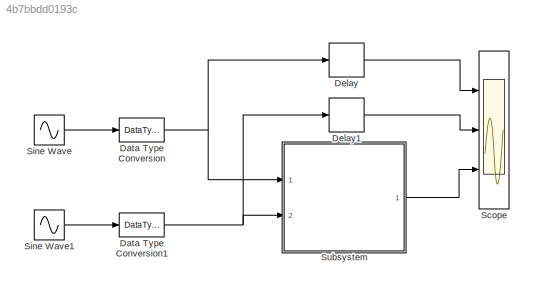
MODEL slx_4b7bbdd0193c
KIND model
CONFIG AbsTol = auto
CONFIG FixedStep = auto
CONFIG MaxStep = auto
CONFIG MinStep = auto
CONFIG RelTol = 1e-3
CONFIG SampleTimeConstraint = Unconstrained
CONFIG Solver = ode45
CONFIG SolverMode = Auto
CONFIG SolverName = ode45
CONFIG StartTime = 0.0
CONFIG StopTime = 1
BLOCK [DataTypeConversion] Data Type Conversion
  OutDataTypeStr = int8
  RndMeth = Floor
  SaturateOnIntegerOverflow = off
BLOCK [DataTypeConversion] Data Type Conversion1
  OutDataTypeStr = int8
  RndMeth = Floor
  SaturateOnIntegerOverflow = off
BLOCK [Delay] Delay
  InputPortMap = u0
  Ports = [1, 1]
BLOCK [Delay] Delay1
  InputPortMap = u0
  Ports = [1, 1]
BLOCK [Scope] Scope
  NumInputPorts = 3
  Ports = [3]
  ScopeSpecificationString = Simulink.scopes.TimeScopeBlockCfg('CurrentConfiguration', extmgr.ConfigurationSet(extmgr.Configuration('Core','General UI',true),extmgr.Configuration('Core','Source UI',true),extmgr.Configuration('Sources','WiredSimulink',true,'DataLoggingSaveFormat','StructureWithTime','DataLoggingLimitDataPoints',true,'DataLoggingDecimation','1','DataLoggingDecimateData',true),extmgr.Configuration('Visuals','Tim...<+3095ch>
BLOCK [Sin] Sine Wave
  Amplitude = 127
  Frequency = 2*pi*5
  Ports = [0, 1]
  SampleTime = 1/100
BLOCK [Sin] Sine Wave1
  Amplitude = 127
  Frequency = 2*pi*8
  Ports = [0, 1]
  SampleTime = 1/100
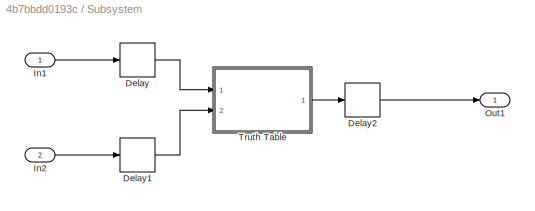
BLOCK [SubSystem] Subsystem
  Ports = [2, 1]
  RequestExecContextInheritance = off
  Variant = off
BLOCK [Delay] Subsystem/Delay
  DelayLength = 1
  InputPortMap = u0
  Ports = [1, 1]
BLOCK [Delay] Subsystem/Delay1
  DelayLength = 1
  InputPortMap = u0
  Ports = [1, 1]
BLOCK [Delay] Subsystem/Delay2
  DelayLength = 1
  InputPortMap = u0
  Ports = [1, 1]
BLOCK [Inport] Subsystem/In1
  IconDisplay = Port number
BLOCK [Inport] Subsystem/In2
  IconDisplay = Port number
  Port = 2
BLOCK [Outport] Subsystem/Out1
  IconDisplay = Port number
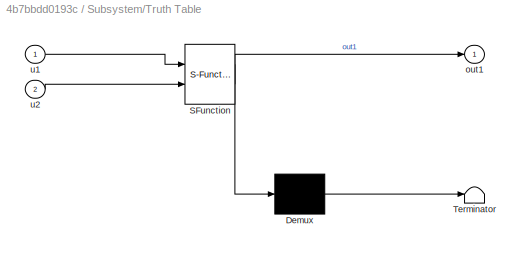
BLOCK [SubSystem] Subsystem/Truth Table
  ErrorFcn = Stateflow.Translate.translate
  PermitHierarchicalResolution = ExplicitOnly
  Ports = [2, 1]
  RequestExecContextInheritance = off
  SFBlockType = Truth Table
  TreatAsAtomicUnit = on
  Variant = off
BLOCK [Demux] Subsystem/Truth Table/ Demux 
  Outputs = 1
  Ports = [1, 1]
BLOCK [S-Function] Subsystem/Truth Table/ SFunction 
  EnableBusSupport = on
  FunctionName = sf_sfun
  PortCounts = [2 2]
  Ports = [2, 2]
  SFunctionDeploymentMode = off
  Tag = Stateflow S-Function sf_truthtable 2
BLOCK [Terminator] Subsystem/Truth Table/ Terminator 
BLOCK [Outport] Subsystem/Truth Table/out1
  IconDisplay = Port number
BLOCK [Inport] Subsystem/Truth Table/u1
  IconDisplay = Port number
BLOCK [Inport] Subsystem/Truth Table/u2
  IconDisplay = Port number
  Port = 2
NET Data Type Conversion1:1 -> Delay1:1, Subsystem:2
NET Data Type Conversion:1 -> Delay:1, Subsystem:1
LINE Delay1:1 -> Scope:2
LINE Delay:1 -> Scope:1
LINE Sine Wave1:1 -> Data Type Conversion1:1
LINE Sine Wave:1 -> Data Type Conversion:1
LINE Subsystem/Delay1:1 -> Subsystem/Truth Table:2
LINE Subsystem/Delay2:1 -> Subsystem/Out1:1
LINE Subsystem/Delay:1 -> Subsystem/Truth Table:1
LINE Subsystem/In1:1 -> Subsystem/Delay:1
LINE Subsystem/In2:1 -> Subsystem/Delay1:1
LINE Subsystem/Truth Table:1 -> Subsystem/Delay2:1
LINE Subsystem:1 -> Scope:3
note: NET lines group one-source signal fan-out (src -> all destinations, sorted); 1:1 wires keep LINE
CHART Subsystem/Truth Table states=1 transitions=1
  STATE_LABEL 'tt_blk_kernel'
  STATE_LABEL 'SCRIPT:\nfunction out1 = fcn(u1, u2)\n\naVarTruthTableCondition_1 = false;\naVarTruthTableCondition_2 = false;\n\n\n% Example condition 1\n\naVarTruthTableCondition_1 = logical(u1 >= 0);\n\n% Example condition 2\n\naVarTruthTableCondition_2 = logical(u2 >= 0);\n\nif (aVarTruthTableCondition_1 && ~aVarTruthTableCondition_2)\n    Action1();\nelseif (~aVarTruthTableCondition_1 && aVarTruthTableCondition_2)\n    Action...<+274ch>'
